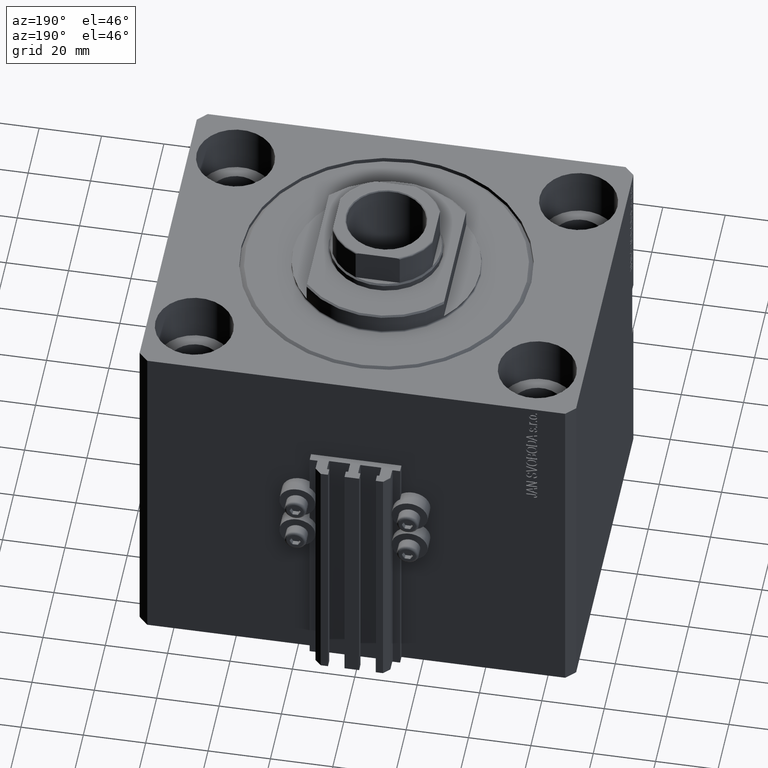
[diagram: clean part render]
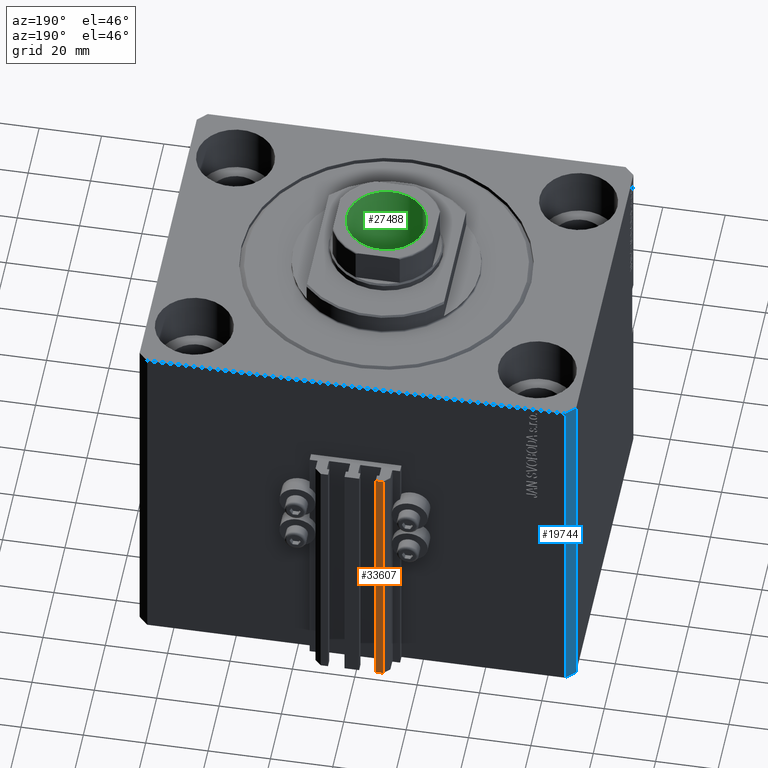
[diagram: same view with three faces highlighted in distinct colors, each labeled with its STEP entity id]
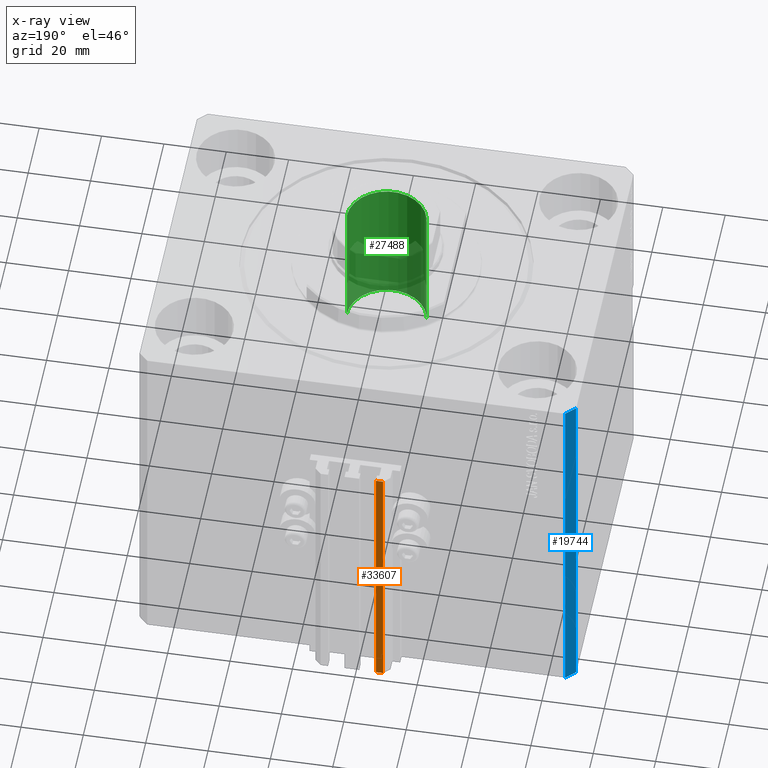
[diagram: x-ray of the same camera — body ghosted, the three highlighted faces saturated]
A machine part, auxiliary view with three faces highlighted in distinct colors.
The next image is the same camera in x-ray (body ghosted, the three faces saturated) — at least one of them is partly hidden behind the body in this view.
Their STEP definitions:

[orange] entity #33607 — the highlighted planar face has unit normal (0, 1, 0).
#629 = CARTESIAN_POINT ( 'NONE',  ( -7.650000000000002132, 63.00000000000000000, -33.00000000000000000 ) ) ;
#661 = VECTOR ( 'NONE', #23548, 1000.000000000000000 ) ;
#1895 = DIRECTION ( 'NONE',  ( 0.000000000000000000, 1.000000000000000000, -0.000000000000000000 ) ) ;
#2123 = EDGE_CURVE ( 'NONE', #32989, #33367, #8272, .T. ) ;
#2490 = DIRECTION ( 'NONE',  ( 0.000000000000000000, 0.000000000000000000, 1.000000000000000000 ) ) ;
#3577 = EDGE_CURVE ( 'NONE', #16925, #42960, #22766, .T. ) ;
#4887 = CARTESIAN_POINT ( 'NONE',  ( -7.650000000000002132, 63.00000000000000000, -33.00000000000000000 ) ) ;
#6184 = LINE ( 'NONE', #9415, #13535 ) ;
#6603 = AXIS2_PLACEMENT_3D ( 'NONE', #32237, #1895, #23635 ) ;
#8272 = LINE ( 'NONE', #629, #9780 ) ;
#9415 = CARTESIAN_POINT ( 'NONE',  ( -7.650000000000002132, 63.00000000000000000, -120.0000000000000000 ) ) ;
#9780 = VECTOR ( 'NONE', #23324, 1000.000000000000000 ) ;
#11850 = ORIENTED_EDGE ( 'NONE', *, *, #2123, .F. ) ;
#11946 = ORIENTED_EDGE ( 'NONE', *, *, #3577, .T. ) ;
#12765 = CARTESIAN_POINT ( 'NONE',  ( -10.00000000000000000, 63.00000000000000000, -120.0000000000000000 ) ) ;
#13535 = VECTOR ( 'NONE', #2490, 1000.000000000000000 ) ;
#15854 = EDGE_CURVE ( 'NONE', #42960, #33367, #42053, .T. ) ;
#16479 = FACE_OUTER_BOUND ( 'NONE', #18955, .T. ) ;
#16925 = VERTEX_POINT ( 'NONE', #36822 ) ;
#18955 = EDGE_LOOP ( 'NONE', ( #11850, #41230, #11946, #35183 ) ) ;
#19313 = VECTOR ( 'NONE', #22516, 1000.000000000000000 ) ;
#20379 = CARTESIAN_POINT ( 'NONE',  ( -10.00000000000000000, 63.00000000000000000, -33.00000000000000000 ) ) ;
#22516 = DIRECTION ( 'NONE',  ( -1.000000000000000000, 0.000000000000000000, 0.000000000000000000 ) ) ;
#22766 = LINE ( 'NONE', #34591, #19313 ) ;
#23324 = DIRECTION ( 'NONE',  ( -1.000000000000000000, 0.000000000000000000, 0.000000000000000000 ) ) ;
#23548 = DIRECTION ( 'NONE',  ( 0.000000000000000000, 0.000000000000000000, 1.000000000000000000 ) ) ;
#23635 = DIRECTION ( 'NONE',  ( 0.000000000000000000, 0.000000000000000000, 1.000000000000000000 ) ) ;
#24264 = EDGE_CURVE ( 'NONE', #16925, #32989, #6184, .T. ) ;
#31262 = PLANE ( 'NONE',  #6603 ) ;
#32237 = CARTESIAN_POINT ( 'NONE',  ( -7.650000000000002132, 63.00000000000000000, -120.0000000000000000 ) ) ;
#32989 = VERTEX_POINT ( 'NONE', #4887 ) ;
#33367 = VERTEX_POINT ( 'NONE', #20379 ) ;
#33607 = ADVANCED_FACE ( 'NONE', ( #16479 ), #31262, .T. ) ;
#34591 = CARTESIAN_POINT ( 'NONE',  ( -7.650000000000002132, 63.00000000000000000, -120.0000000000000000 ) ) ;
#34878 = CARTESIAN_POINT ( 'NONE',  ( -10.00000000000000000, 63.00000000000000000, -120.0000000000000000 ) ) ;
#35183 = ORIENTED_EDGE ( 'NONE', *, *, #15854, .T. ) ;
#36822 = CARTESIAN_POINT ( 'NONE',  ( -7.650000000000002132, 63.00000000000000000, -120.0000000000000000 ) ) ;
#41230 = ORIENTED_EDGE ( 'NONE', *, *, #24264, .F. ) ;
#42053 = LINE ( 'NONE', #34878, #661 ) ;
#42960 = VERTEX_POINT ( 'NONE', #12765 ) ;

[blue] entity #19744 — the highlighted planar face has unit normal (-0.7071, 0.7071, 0).
#1828 = VECTOR ( 'NONE', #2044, 1000.000000000000000 ) ;
#1848 = ORIENTED_EDGE ( 'NONE', *, *, #28189, .T. ) ;
#2044 = DIRECTION ( 'NONE',  ( 0.000000000000000000, 0.000000000000000000, 1.000000000000000000 ) ) ;
#3991 = DIRECTION ( 'NONE',  ( -0.7071067811865451302, -0.7071067811865500152, 0.000000000000000000 ) ) ;
#4791 = CARTESIAN_POINT ( 'NONE',  ( -67.00000000000000000, 55.00000000000000000, 0.000000000000000000 ) ) ;
#4979 = CARTESIAN_POINT ( 'NONE',  ( -67.00000000000000000, 55.00000000000000000, -120.0000000000000000 ) ) ;
#7259 = EDGE_CURVE ( 'NONE', #24322, #22556, #28547, .T. ) ;
#9778 = EDGE_CURVE ( 'NONE', #19608, #24322, #38550, .T. ) ;
#10407 = CARTESIAN_POINT ( 'NONE',  ( -67.00000000000000000, 55.00000000000000000, -120.0000000000000000 ) ) ;
#14301 = ORIENTED_EDGE ( 'NONE', *, *, #19645, .T. ) ;
#18571 = CARTESIAN_POINT ( 'NONE',  ( -69.99999999999998579, 51.99999999999999289, 0.000000000000000000 ) ) ;
#19513 = VECTOR ( 'NONE', #35323, 1000.000000000000000 ) ;
#19608 = VERTEX_POINT ( 'NONE', #48141 ) ;
#19645 = EDGE_CURVE ( 'NONE', #19608, #23886, #21021, .T. ) ;
#19744 = ADVANCED_FACE ( 'NONE', ( #22233 ), #26688, .T. ) ;
#21021 = LINE ( 'NONE', #10407, #48077 ) ;
#22233 = FACE_OUTER_BOUND ( 'NONE', #29901, .T. ) ;
#22556 = VERTEX_POINT ( 'NONE', #18571 ) ;
#23221 = CARTESIAN_POINT ( 'NONE',  ( -67.00000000000000000, 55.00000000000000000, -120.0000000000000000 ) ) ;
#23343 = VECTOR ( 'NONE', #36918, 1000.000000000000114 ) ;
#23886 = VERTEX_POINT ( 'NONE', #44361 ) ;
#24322 = VERTEX_POINT ( 'NONE', #4791 ) ;
#24456 = AXIS2_PLACEMENT_3D ( 'NONE', #23221, #41741, #3991 ) ;
#24853 = CARTESIAN_POINT ( 'NONE',  ( -67.00000000000000000, 55.00000000000000000, 0.000000000000000000 ) ) ;
#25233 = LINE ( 'NONE', #47436, #1828 ) ;
#25837 = ORIENTED_EDGE ( 'NONE', *, *, #7259, .F. ) ;
#26688 = PLANE ( 'NONE',  #24456 ) ;
#28189 = EDGE_CURVE ( 'NONE', #23886, #22556, #25233, .T. ) ;
#28547 = LINE ( 'NONE', #24853, #23343 ) ;
#29901 = EDGE_LOOP ( 'NONE', ( #25837, #36285, #14301, #1848 ) ) ;
#35323 = DIRECTION ( 'NONE',  ( 0.000000000000000000, 0.000000000000000000, 1.000000000000000000 ) ) ;
#36285 = ORIENTED_EDGE ( 'NONE', *, *, #9778, .F. ) ;
#36918 = DIRECTION ( 'NONE',  ( -0.7071067811865451302, -0.7071067811865500152, 0.000000000000000000 ) ) ;
#38550 = LINE ( 'NONE', #4979, #19513 ) ;
#40265 = DIRECTION ( 'NONE',  ( -0.7071067811865451302, -0.7071067811865500152, 0.000000000000000000 ) ) ;
#41741 = DIRECTION ( 'NONE',  ( -0.7071067811865500152, 0.7071067811865451302, 0.000000000000000000 ) ) ;
#44361 = CARTESIAN_POINT ( 'NONE',  ( -69.99999999999998579, 51.99999999999999289, -120.0000000000000000 ) ) ;
#47436 = CARTESIAN_POINT ( 'NONE',  ( -69.99999999999998579, 51.99999999999999289, -120.0000000000000000 ) ) ;
#48077 = VECTOR ( 'NONE', #40265, 1000.000000000000114 ) ;
#48141 = CARTESIAN_POINT ( 'NONE',  ( -67.00000000000000000, 55.00000000000000000, -120.0000000000000000 ) ) ;

[green] entity #27488 — the highlighted cylindrical surface (partial cylindrical patch) has radius 12.75 mm, axis along (0, 0, 1).
#124 = EDGE_CURVE ( 'NONE', #21647, #4259, #2720, .T. ) ;
#2720 = CIRCLE ( 'NONE', #27151, 12.74999999999999112 ) ;
#4259 = VERTEX_POINT ( 'NONE', #11064 ) ;
#7750 = CIRCLE ( 'NONE', #39306, 12.74999999999999467 ) ;
#8171 = CARTESIAN_POINT ( 'NONE',  ( 0.000000000000000000, 0.000000000000000000, 115.0000000000000000 ) ) ;
#9857 = CARTESIAN_POINT ( 'NONE',  ( -12.74999999999999467, 1.561424668912874519E-15, 114.6999999999999602 ) ) ;
#9954 = LINE ( 'NONE', #13172, #19056 ) ;
#10750 = DIRECTION ( 'NONE',  ( 1.000000000000000000, 0.000000000000000000, 0.000000000000000000 ) ) ;
#11064 = CARTESIAN_POINT ( 'NONE',  ( 12.74999999999999112, 0.000000000000000000, 70.00000000000000000 ) ) ;
#12854 = DIRECTION ( 'NONE',  ( 1.000000000000000000, 0.000000000000000000, 0.000000000000000000 ) ) ;
#13172 = CARTESIAN_POINT ( 'NONE',  ( -12.74999999999999467, 1.561424668912874519E-15, 115.0000000000000000 ) ) ;
#14451 = DIRECTION ( 'NONE',  ( 0.000000000000000000, 0.000000000000000000, 1.000000000000000000 ) ) ;
#14827 = EDGE_LOOP ( 'NONE', ( #21518, #31528, #37483, #31665 ) ) ;
#15834 = FACE_OUTER_BOUND ( 'NONE', #14827, .T. ) ;
#16556 = DIRECTION ( 'NONE',  ( -0.000000000000000000, -0.000000000000000000, 1.000000000000000000 ) ) ;
#19056 = VECTOR ( 'NONE', #31660, 1000.000000000000000 ) ;
#19913 = AXIS2_PLACEMENT_3D ( 'NONE', #8171, #16556, #12854 ) ;
#21518 = ORIENTED_EDGE ( 'NONE', *, *, #124, .F. ) ;
#21647 = VERTEX_POINT ( 'NONE', #46466 ) ;
#23154 = EDGE_CURVE ( 'NONE', #21647, #25715, #9954, .T. ) ;
#24767 = DIRECTION ( 'NONE',  ( -0.000000000000000000, -0.000000000000000000, 1.000000000000000000 ) ) ;
#25715 = VERTEX_POINT ( 'NONE', #9857 ) ;
#27151 = AXIS2_PLACEMENT_3D ( 'NONE', #36280, #28390, #39742 ) ;
#27488 = ADVANCED_FACE ( 'NONE', ( #15834 ), #35293, .F. ) ;
#28390 = DIRECTION ( 'NONE',  ( -0.000000000000000000, -0.000000000000000000, 1.000000000000000000 ) ) ;
#28768 = CARTESIAN_POINT ( 'NONE',  ( 0.000000000000000000, 0.000000000000000000, 114.6999999999999602 ) ) ;
#28808 = VECTOR ( 'NONE', #24767, 1000.000000000000000 ) ;
#29150 = CARTESIAN_POINT ( 'NONE',  ( 12.74999999999999467, 0.000000000000000000, 114.6999999999999602 ) ) ;
#31528 = ORIENTED_EDGE ( 'NONE', *, *, #23154, .T. ) ;
#31660 = DIRECTION ( 'NONE',  ( -0.000000000000000000, -0.000000000000000000, 1.000000000000000000 ) ) ;
#31665 = ORIENTED_EDGE ( 'NONE', *, *, #38777, .F. ) ;
#31704 = VERTEX_POINT ( 'NONE', #29150 ) ;
#32404 = LINE ( 'NONE', #43529, #28808 ) ;
#35293 = CYLINDRICAL_SURFACE ( 'NONE', #19913, 12.74999999999999467 ) ;
#36280 = CARTESIAN_POINT ( 'NONE',  ( 0.000000000000000000, 0.000000000000000000, 70.00000000000000000 ) ) ;
#37483 = ORIENTED_EDGE ( 'NONE', *, *, #45473, .T. ) ;
#38777 = EDGE_CURVE ( 'NONE', #4259, #31704, #32404, .T. ) ;
#39306 = AXIS2_PLACEMENT_3D ( 'NONE', #28768, #14451, #10750 ) ;
#39742 = DIRECTION ( 'NONE',  ( 1.000000000000000000, 0.000000000000000000, 0.000000000000000000 ) ) ;
#43529 = CARTESIAN_POINT ( 'NONE',  ( 12.74999999999999467, 0.000000000000000000, 115.0000000000000000 ) ) ;
#45473 = EDGE_CURVE ( 'NONE', #25715, #31704, #7750, .T. ) ;
#46466 = CARTESIAN_POINT ( 'NONE',  ( -12.74999999999999112, 1.561424668912874125E-15, 70.00000000000000000 ) ) ;